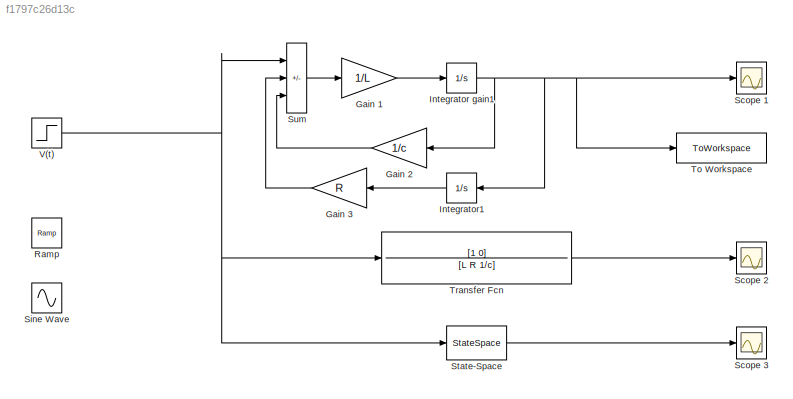
MODEL slx_f1797c26d13c
KIND model
CONFIG AbsTol = auto
CONFIG EnableMultiTasking = off
CONFIG FixedStep = auto
CONFIG MaxStep = auto
CONFIG MinStep = auto
CONFIG RelTol = 1e-3
CONFIG SampleTimeConstraint = Unconstrained
CONFIG SolverName = VariableStepAuto
CONFIG StartTime = 0.0
CONFIG StopTime = 30
BLOCK [Gain] Gain 1
  Gain = 1/L
BLOCK [Gain] Gain 2
  Gain = 1/c
  NameLocation = top
BLOCK [Gain] Gain 3
  Gain = R
  NameLocation = top
BLOCK [Integrator] Integrator gain1
BLOCK [Integrator] Integrator1
  NameLocation = top
BLOCK [Reference] Ramp  REF=simulink/Sources/Ramp
  SourceBlock = simulink/Sources/Ramp
  SourceType = Ramp
BLOCK [Scope] Scope 1
  Floating = off
  NumInputPorts = 1
  ScopeSpecificationString = Simulink.scopes.TimeScopeBlockCfg('CurrentConfiguration', extmgr.ConfigurationSet(extmgr.Configuration('Core','General UI',true),extmgr.Configuration('Core','Source UI',true),extmgr.Configuration('Sources','WiredSimulink',true),extmgr.Configuration('Visuals','Time Domain',true,'SerializedDisplays',{struct('MinYLimReal','-0.00013','MaxYLimReal','0.00112','YLabelReal','','MinYLimMag','0.00000','MaxY...<+1336ch>
BLOCK [Scope] Scope 2
  Floating = off
  NumInputPorts = 1
  ScopeSpecificationString = Simulink.scopes.TimeScopeBlockCfg('CurrentConfiguration', extmgr.ConfigurationSet(extmgr.Configuration('Core','General UI',true),extmgr.Configuration('Core','Source UI',true),extmgr.Configuration('Sources','WiredSimulink',true,'DataLoggingVariableName','ScopeData1'),extmgr.Configuration('Visuals','Time Domain',true,'SerializedDisplays',{struct('MinYLimReal','-0.00119','MaxYLimReal','0.00119','YLab...<+1371ch>
BLOCK [Scope] Scope 3
  Floating = off
  NumInputPorts = 1
  ScopeSpecificationString = Simulink.scopes.TimeScopeBlockCfg('CurrentConfiguration', extmgr.ConfigurationSet(extmgr.Configuration('Core','General UI',true),extmgr.Configuration('Core','Source UI',true),extmgr.Configuration('Sources','WiredSimulink',true,'DataLoggingVariableName','ScopeData2'),extmgr.Configuration('Visuals','Time Domain',true,'SerializedDisplays',{struct('MinYLimReal','-0.00119','MaxYLimReal','0.00119','YLab...<+1370ch>
BLOCK [Sin] Sine Wave
  SampleTime = 0
BLOCK [StateSpace] State-Space
  A = A
  B = B
  C = C
  D = D
  InitialCondition = 0
BLOCK [Sum] Sum
  IconShape = rectangular
  Inputs = +--
BLOCK [ToWorkspace] To Workspace
  FixptAsFi = on
  MaxDataPoints = inf
  SampleTime = -1
  SaveFormat = Timeseries
  VariableName = simout
BLOCK [TransferFcn] Transfer Fcn
  Denominator = [L R 1/c]
  Numerator = [1 0]
BLOCK [Step] V(t)
  SampleTime = 0
LINE Gain 1:1 -> Integrator gain1:1
LINE Gain 2:1 -> Sum:3
LINE Gain 3:1 -> Sum:2
NET Integrator gain1:1 -> Gain 2:1, Integrator1:1, Scope 1:1, To Workspace:1
LINE Integrator1:1 -> Gain 3:1
LINE State-Space:1 -> Scope 3:1
LINE Sum:1 -> Gain 1:1
LINE Transfer Fcn:1 -> Scope 2:1
NET V(t):1 -> State-Space:1, Sum:1, Transfer Fcn:1
note: NET lines group one-source signal fan-out (src -> all destinations, sorted); 1:1 wires keep LINE
